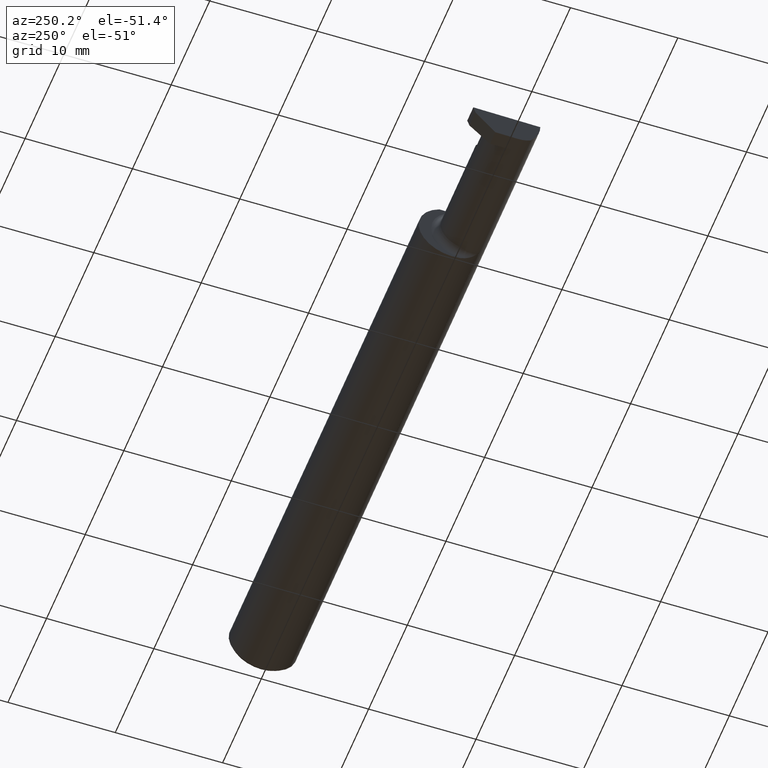
[diagram: clean part render]
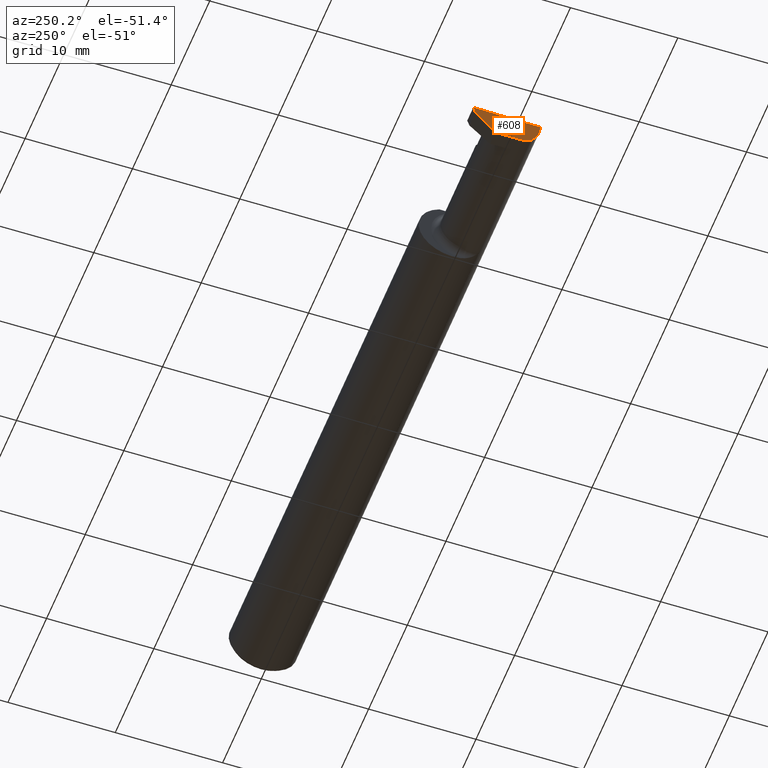
[diagram: same view with one face highlighted and labeled with its STEP entity id]
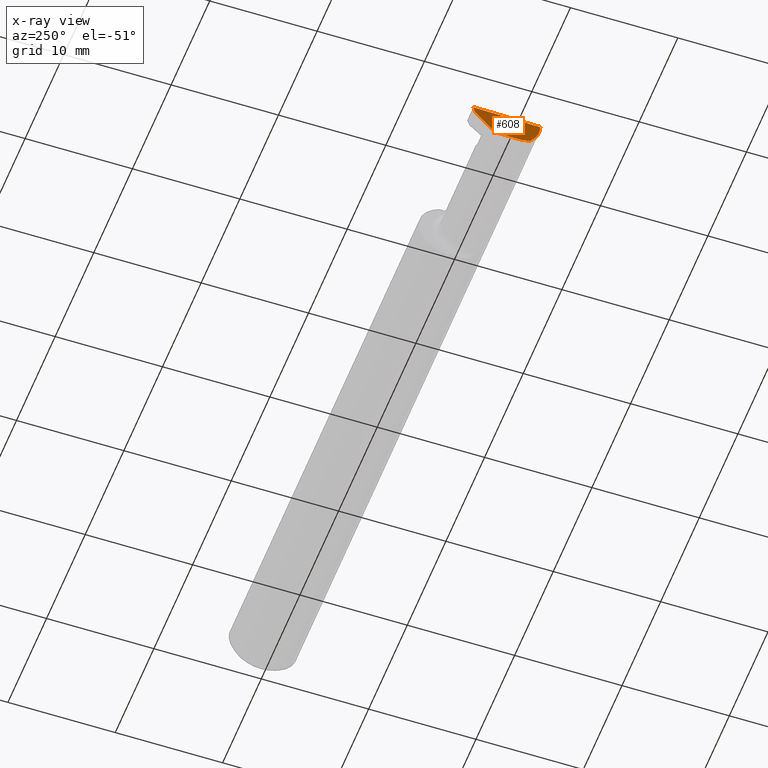
[diagram: x-ray of the same camera — body ghosted, the highlighted face saturated]
A machine part, auxiliary view. The second image highlights one B-rep face of the part: STEP entity #608.
The next image is the same camera in x-ray: the body ghosted, the highlighted face saturated — about 0% of this face is hidden behind the body in this view.
In plain terms, the highlighted planar face has unit normal (0.9995, 0.0174, 0.0262).
Its self-contained STEP definition (entity closure, byte-faithful):
#39 = LINE ( 'NONE', #390, #105 ) ;
#53 = ORIENTED_EDGE ( 'NONE', *, *, #204, .T. ) ;
#54 = CARTESIAN_POINT ( 'NONE',  ( -2.494835769263151537, -0.1248351010429638308, -0.03262966116142157480 ) ) ;
#78 = ORIENTED_EDGE ( 'NONE', *, *, #360, .T. ) ;
#103 = DIRECTION ( 'NONE',  ( -0.01744642479411464761, 0.9998477995484629233, -2.135106780035675284E-18 ) ) ;
#105 = VECTOR ( 'NONE', #343, 39.37007874015748854 ) ;
#150 = ORIENTED_EDGE ( 'NONE', *, *, #586, .T. ) ;
#155 = LINE ( 'NONE', #391, #373 ) ;
#162 = CARTESIAN_POINT ( 'NONE',  ( -2.497382703856816377, 0.1221956850741156286, -0.09996573249755572044 ) ) ;
#166 = EDGE_CURVE ( 'NONE', #527, #428, #155, .T. ) ;
#172 = CARTESIAN_POINT ( 'NONE',  ( -2.495690077103728921, -0.1248499999950965084, 1.733801157256528502E-17 ) ) ;
#176 = VERTEX_POINT ( 'NONE', #648 ) ;
#179 = EDGE_LOOP ( 'NONE', ( #263, #78, #150, #203, #53, #691, #213 ) ) ;
#181 = VECTOR ( 'NONE', #222, 39.37007874015748854 ) ;
#182 = AXIS2_PLACEMENT_3D ( 'NONE', #162, #335, #395 ) ;
#203 = ORIENTED_EDGE ( 'NONE', *, *, #500, .T. ) ;
#204 = EDGE_CURVE ( 'NONE', #563, #744, #592, .T. ) ;
#213 = ORIENTED_EDGE ( 'NONE', *, *, #166, .T. ) ;
#222 = DIRECTION ( 'NONE',  ( 0.03042981077198583101, -0.3254173858243484818, -0.9450807116958995779 ) ) ;
#227 = CARTESIAN_POINT ( 'NONE',  ( -2.495997960279815686, 0.03988613728104775658, -0.09799999999999996214 ) ) ;
#231 = CARTESIAN_POINT ( 'NONE',  ( -2.494380489674781209, -0.1999019447116721915, 6.881915332554903690E-19 ) ) ;
#249 = VECTOR ( 'NONE', #103, 39.37007874015748854 ) ;
#263 = ORIENTED_EDGE ( 'NONE', *, *, #340, .F. ) ;
#270 = VERTEX_POINT ( 'NONE', #353 ) ;
#320 = VERTEX_POINT ( 'NONE', #172 ) ;
#335 = DIRECTION ( 'NONE',  ( 0.9995051766793262571, 0.01744044634007211117, 0.02617694830739122208 ) ) ;
#340 = EDGE_CURVE ( 'NONE', #176, #428, #474, .T. ) ;
#343 = DIRECTION ( 'NONE',  ( -0.02617296143184116158, -0.0004568507411563384147, 0.9996573249755575929 ) ) ;
#353 = CARTESIAN_POINT ( 'NONE',  ( -2.495688583004118666, -0.1248499869621840785, -5.705736120969982501E-05 ) ) ;
#356 = CARTESIAN_POINT ( 'NONE',  ( -2.494033449660867152, -0.09015216647662482874, -0.08637192471845768493 ) ) ;
#359 = CARTESIAN_POINT ( 'NONE',  ( -2.494256244271084721, -0.1126860773865890480, -0.06285177167860772629 ) ) ;
#360 = EDGE_CURVE ( 'NONE', #176, #270, #712, .T. ) ;
#368 = CARTESIAN_POINT ( 'NONE',  ( -2.494082244196984099, -0.07583965973232818791, -0.09404455760388209795 ) ) ;
#373 = VECTOR ( 'NONE', #643, 39.37007874015748854 ) ;
#390 = CARTESIAN_POINT ( 'NONE',  ( -2.493072779947982820, -0.1248043149033065402, -0.09996577117162359916 ) ) ;
#391 = CARTESIAN_POINT ( 'NONE',  ( -2.496652745773396020, 0.07741163850316090667, -0.09800000000000001765 ) ) ;
#395 = DIRECTION ( 'NONE',  ( -0.02618093032612054533, 0.000000000000000000, 0.9996572206948034500 ) ) ;
#428 = VERTEX_POINT ( 'NONE', #745 ) ;
#438 = DIRECTION ( 'NONE',  ( 0.03084274406794521375, -0.7067703747110382073, -0.7067703747110356538 ) ) ;
#468 = CARTESIAN_POINT ( 'NONE',  ( -2.494253479596434175, -0.06008937020638530080, -0.09800000000000001765 ) ) ;
#474 =( BOUNDED_CURVE ( )  B_SPLINE_CURVE ( 3, ( #531, #368, #468, #725 ),
 .UNSPECIFIED., .F., .T. ) 
 B_SPLINE_CURVE_WITH_KNOTS ( ( 4, 4 ),
 ( 0.09562308769844128642, 0.5877155292609013149 ),
 .UNSPECIFIED. ) 
 CURVE ( )  GEOMETRIC_REPRESENTATION_ITEM ( )  RATIONAL_B_SPLINE_CURVE ( ( 1.000000000000000000, 0.9799220177372778284, 0.9799220177372778284, 1.000000000000000000 ) ) 
 REPRESENTATION_ITEM ( '' )  );
#500 = EDGE_CURVE ( 'NONE', #320, #563, #766, .T. ) ;
#517 = CARTESIAN_POINT ( 'NONE',  ( -2.500000000000000444, 0.1221499999999999808, 1.947508823608312588E-17 ) ) ;
#527 = VERTEX_POINT ( 'NONE', #227 ) ;
#531 = CARTESIAN_POINT ( 'NONE',  ( -2.494033449660867152, -0.09015216647662482874, -0.08637192471845768493 ) ) ;
#536 = CARTESIAN_POINT ( 'NONE',  ( -2.495688583004118666, -0.1248499869621840785, -5.705736120969982501E-05 ) ) ;
#548 = CARTESIAN_POINT ( 'NONE',  ( -2.499132853025171297, 0.1117231085775382687, -0.02616302870350971019 ) ) ;
#563 = VERTEX_POINT ( 'NONE', #517 ) ;
#577 = FACE_OUTER_BOUND ( 'NONE', #179, .T. ) ;
#586 = EDGE_CURVE ( 'NONE', #270, #320, #39, .T. ) ;
#592 = LINE ( 'NONE', #767, #181 ) ;
#608 = ADVANCED_FACE ( 'NONE', ( #577 ), #637, .F. ) ;
#611 = CARTESIAN_POINT ( 'NONE',  ( -2.499227245409318954, 0.1138861372810479888, -0.02400000000000000050 ) ) ;
#637 = PLANE ( 'NONE',  #182 ) ;
#643 = DIRECTION ( 'NONE',  ( 0.01744642479411464067, -0.9998477995484629233, 2.816882764651547739E-16 ) ) ;
#648 = CARTESIAN_POINT ( 'NONE',  ( -2.494033449660867152, -0.09015216647662482874, -0.08637192471845768493 ) ) ;
#675 = LINE ( 'NONE', #548, #762 ) ;
#684 = EDGE_CURVE ( 'NONE', #744, #527, #675, .T. ) ;
#691 = ORIENTED_EDGE ( 'NONE', *, *, #684, .T. ) ;
#712 =( BOUNDED_CURVE ( )  B_SPLINE_CURVE ( 3, ( #356, #359, #54, #536 ),
 .UNSPECIFIED., .F., .F. ) 
 B_SPLINE_CURVE_WITH_KNOTS ( ( 4, 4 ),
 ( 0.2190942387645155864, 0.9826237902196512941 ),
 .UNSPECIFIED. ) 
 CURVE ( )  GEOMETRIC_REPRESENTATION_ITEM ( )  RATIONAL_B_SPLINE_CURVE ( ( 1.000000000000000000, 0.9520057322288819623, 0.9520057322288819623, 1.000000000000000000 ) ) 
 REPRESENTATION_ITEM ( '' )  );
#725 = CARTESIAN_POINT ( 'NONE',  ( -2.494536841675280670, -0.04385000000000003478, -0.09799999999999998990 ) ) ;
#744 = VERTEX_POINT ( 'NONE', #611 ) ;
#745 = CARTESIAN_POINT ( 'NONE',  ( -2.494536841675280670, -0.04385000000000003478, -0.09799999999999998990 ) ) ;
#762 = VECTOR ( 'NONE', #438, 39.37007874015748854 ) ;
#766 = LINE ( 'NONE', #231, #249 ) ;
#767 = CARTESIAN_POINT ( 'NONE',  ( -2.499907402661638578, 0.1211597610527450630, -0.002875862722116008779 ) ) ;